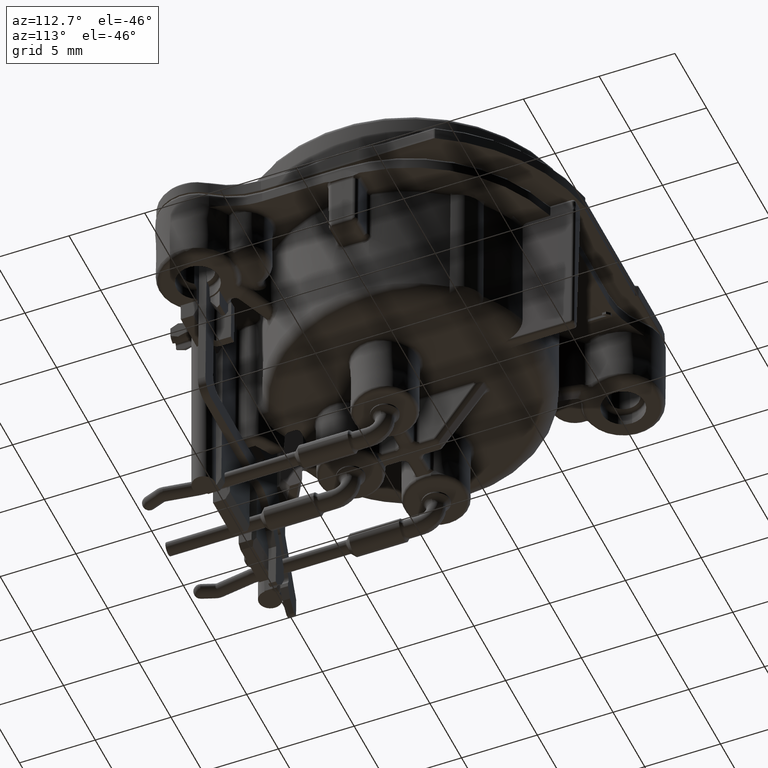
[diagram: clean part render]
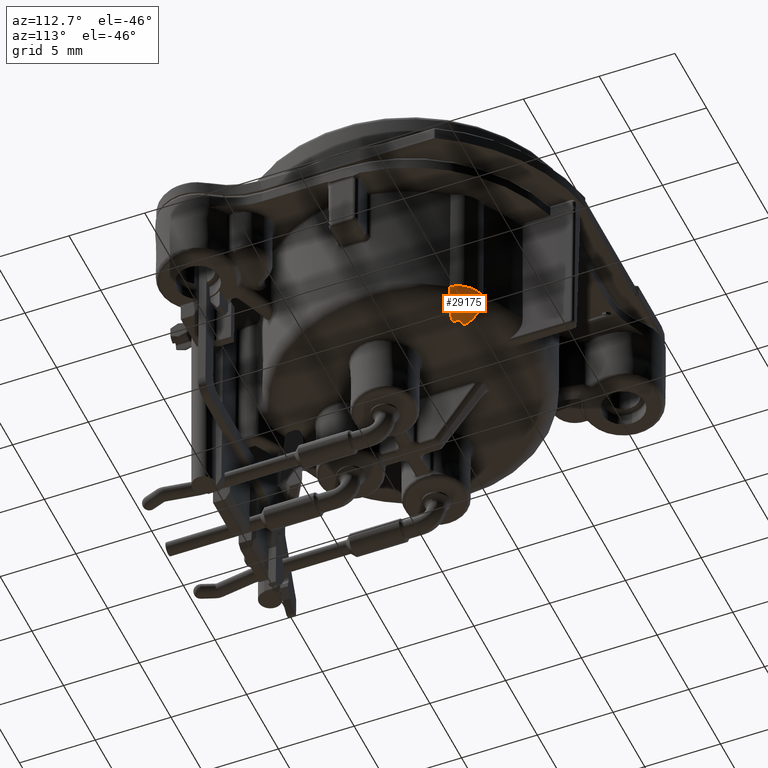
[diagram: same view with one face highlighted and labeled with its STEP entity id]
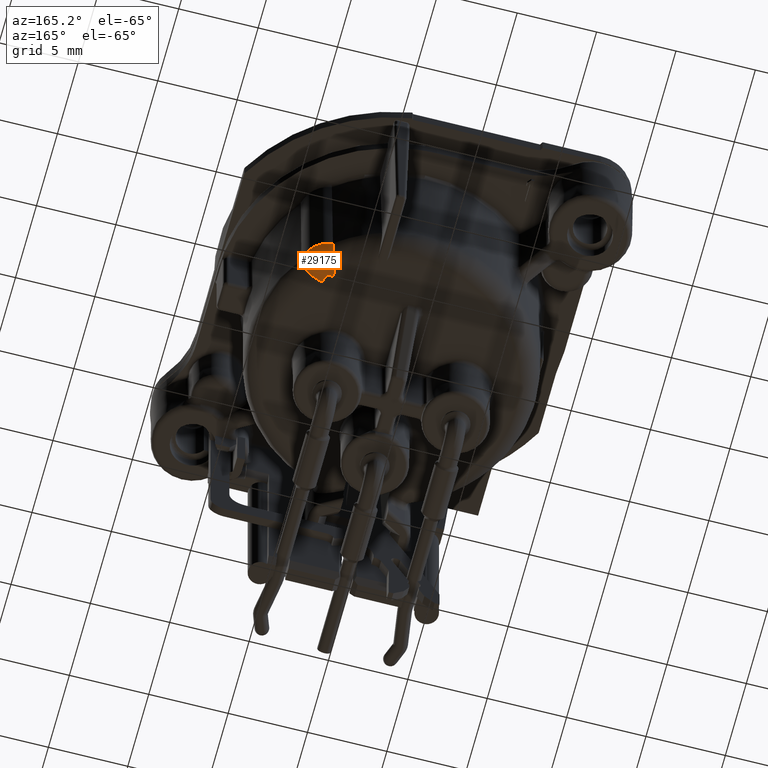
[diagram: same view with one face highlighted and labeled with its STEP entity id]
A machine part, auxiliary view. The second image highlights one B-rep face of the part: STEP entity #29175.
A second angle (auxiliary view) of the same face is appended — the face is thin or edge-on in the first view.
In plain terms, the highlighted face is a freeform B-spline surface patch.
Its self-contained STEP definition (entity closure, byte-faithful):
#3741=CARTESIAN_POINT('',(7.141560531053E0,5.568555176567E0,-9.212067490069E0));
#3742=CARTESIAN_POINT('',(7.141553096548E0,5.568544783689E0,-9.213080445044E0));
#3743=CARTESIAN_POINT('',(7.141535786267E0,5.568527132350E0,-9.215106174966E0));
#3744=CARTESIAN_POINT('',(7.141513598370E0,5.568515747312E0,-9.217131353627E0));
#3745=CARTESIAN_POINT('',(7.141501285638E0,5.56851162E0,-9.218143833828E0));
#3861=CARTESIAN_POINT('',(5.56851162E0,7.141501285638E0,-9.218143833828E0));
#3862=CARTESIAN_POINT('',(5.568515747312E0,7.141513598370E0,-9.217131353633E0));
#3863=CARTESIAN_POINT('',(5.568527132360E0,7.141535786274E0,-9.215106174019E0));
#3864=CARTESIAN_POINT('',(5.568544783670E0,7.141553096534E0,-9.213080446931E0));
#3865=CARTESIAN_POINT('',(5.568555176548E0,7.141560531040E0,-9.212067491938E0));
#3999=CARTESIAN_POINT('',(5.354409922025E0,5.354409922025E0,-9.196753750945E0));
#4000=DIRECTION('',(7.651482399815E-3,7.651482399815E-3,9.999414531032E-1));
#4001=DIRECTION('',(9.928614492877E-1,1.189695858067E-1,-8.507653693315E-3));
#4002=AXIS2_PLACEMENT_3D('',#3999,#4000,#4001);
#4024=CARTESIAN_POINT('',(7.141501285638E0,5.56851162E0,-9.218143833828E0));
#4025=CARTESIAN_POINT('',(7.140363829401E0,5.568130336944E0,-9.311677252098E0));
#4026=CARTESIAN_POINT('',(7.121437534759E0,5.560489438757E0,-9.492890903120E0));
#4027=CARTESIAN_POINT('',(7.051261413969E0,5.532073586292E0,-9.740982577055E0));
#4028=CARTESIAN_POINT('',(6.951075627711E0,5.492133194723E0,-9.954862100472E0));
#4029=CARTESIAN_POINT('',(6.829486726049E0,5.444902039040E0,-1.013596077637E1));
#4030=CARTESIAN_POINT('',(6.699753358048E0,5.396278685597E0,-1.027956180640E1));
#4031=CARTESIAN_POINT('',(6.571274377264E0,5.350216565990E0,-1.038995278199E1));
#4032=CARTESIAN_POINT('',(6.446710165318E0,5.307892040028E0,-1.047482997417E1));
#4033=CARTESIAN_POINT('',(6.326304100696E0,5.269577936695E0,-1.054036452966E1));
#4034=CARTESIAN_POINT('',(6.207104042662E0,5.234672033966E0,-1.059184473607E1));
#4035=CARTESIAN_POINT('',(6.087066482317E0,5.203354871644E0,-1.063185302861E1));
#4036=CARTESIAN_POINT('',(5.968928051255E0,5.177393684307E0,-1.066097071183E1));
#4037=CARTESIAN_POINT('',(5.854409164263E0,5.158735600602E0,-1.068052133470E1));
#4038=CARTESIAN_POINT('',(5.784289192648E0,5.153092281791E0,-1.068804264199E1));
#4039=CARTESIAN_POINT('',(5.750524781642E0,5.152944040210E0,-1.069084467006E1));
#4041=CARTESIAN_POINT('',(5.626298010358E0,5.227620195725E0,-9.197864033512E0));
#4042=DIRECTION('',(4.225793594926E-1,9.062688847885E-1,-1.016825427287E-2));
#4043=DIRECTION('',(8.281784752307E-2,-4.978410367612E-2,-9.953204243623E-1));
#4044=AXIS2_PLACEMENT_3D('',#4041,#4042,#4043);
#4166=CARTESIAN_POINT('',(5.227620195725E0,5.626298010358E0,-9.197864033512E0));
#4167=DIRECTION('',(9.062688847885E-1,4.225793594926E-1,-1.016825427287E-2));
#4168=DIRECTION('',(-1.221163584647E-2,2.128718644245E-3,-9.999231693020E-1));
#4169=AXIS2_PLACEMENT_3D('',#4166,#4167,#4168);
#4171=CARTESIAN_POINT('',(5.152944040210E0,5.750524781642E0,-1.069084467006E1));
#4172=CARTESIAN_POINT('',(5.153026603710E0,5.769329950256E0,-1.068928407389E1));
#4173=CARTESIAN_POINT('',(5.154944537595E0,5.808527346492E0,-1.068549103756E1));
#4174=CARTESIAN_POINT('',(5.161959030777E0,5.871805801874E0,-1.067727175806E1));
#4175=CARTESIAN_POINT('',(5.172756793044E0,5.940273306183E0,-1.066575483529E1));
#4176=CARTESIAN_POINT('',(5.187199819141E0,6.014011607479E0,-1.065006989303E1));
#4177=CARTESIAN_POINT('',(5.205238502033E0,6.093069674331E0,-1.062918676062E1));
#4178=CARTESIAN_POINT('',(5.226781082627E0,6.177135621977E0,-1.060196659187E1));
#4179=CARTESIAN_POINT('',(5.251526766158E0,6.265266510119E0,-1.056738502241E1));
#4180=CARTESIAN_POINT('',(5.279530961624E0,6.357885176064E0,-1.052371042722E1));
#4181=CARTESIAN_POINT('',(5.311029772350E0,6.455781931379E0,-1.046834756707E1));
#4182=CARTESIAN_POINT('',(5.346025053386E0,6.558903869110E0,-1.039817214998E1));
#4183=CARTESIAN_POINT('',(5.384031076242E0,6.665887263221E0,-1.030984229905E1));
#4184=CARTESIAN_POINT('',(5.424244550536E0,6.774764313906E0,-1.019941517132E1));
#4185=CARTESIAN_POINT('',(5.465782841020E0,6.883554517902E0,-1.006026012425E1));
#4186=CARTESIAN_POINT('',(5.505370169123E0,6.984433299522E0,-9.890017212215E0));
#4187=CARTESIAN_POINT('',(5.538900066078E0,7.068155509057E0,-9.689719048644E0));
#4188=CARTESIAN_POINT('',(5.562107981650E0,7.125422644058E0,-9.462713033108E0));
#4189=CARTESIAN_POINT('',(5.568173859603E0,7.140493667638E0,-9.301000609149E0));
#4190=CARTESIAN_POINT('',(5.56851162E0,7.141501285638E0,-9.218143833828E0));
#19843=CARTESIAN_POINT('',(5.342933370381E0,5.342933370381E0,
-1.069657811540E1));
#19844=DIRECTION('',(7.651482399815E-3,7.651482399815E-3,9.999414531032E-1));
#19845=DIRECTION('',(9.062898641540E-1,-4.226404924179E-1,-3.700851328881E-3));
#19846=AXIS2_PLACEMENT_3D('',#19843,#19844,#19845);
#20780=VERTEX_POINT('',#3741);
#20781=VERTEX_POINT('',#3745);
#20782=VERTEX_POINT('',#3861);
#20783=VERTEX_POINT('',#3865);
#20784=CARTESIAN_POINT('',(5.750524781642E0,5.152944040210E0,
-1.069084467006E1));
#20785=CARTESIAN_POINT('',(5.629491074218E0,5.209302748531E0,
-1.069774878758E1));
#20786=VERTEX_POINT('',#20784);
#20787=VERTEX_POINT('',#20785);
#20788=CARTESIAN_POINT('',(5.209302741955E0,5.629491088324E0,
-1.069774878747E1));
#20789=CARTESIAN_POINT('',(5.152944040210E0,5.750524781642E0,
-1.069084467006E1));
#20790=VERTEX_POINT('',#20788);
#20791=VERTEX_POINT('',#20789);
#29143=CARTESIAN_POINT('',(5.629531732876E0,5.209283793595E0,
-1.069774846886E1));
#29144=CARTESIAN_POINT('',(6.419083601944E0,4.841197386519E0,
-1.069154627633E1));
#29145=CARTESIAN_POINT('',(6.979072793296E0,4.587005905497E0,
-1.007452356949E1));
#29146=CARTESIAN_POINT('',(6.985738452022E0,4.593671564223E0,
-9.203415446347E0));
#29147=CARTESIAN_POINT('',(5.778665639357E0,5.529118201204E0,
-1.070133698176E1));
#29148=CARTESIAN_POINT('',(6.979030036642E0,6.042065388034E0,
-1.070501990584E1));
#29149=CARTESIAN_POINT('',(7.827948531159E0,6.407515239414E0,
-1.009494951826E1));
#29150=CARTESIAN_POINT('',(7.834614189885E0,6.414180898140E0,
-9.223841395118E0));
#29151=CARTESIAN_POINT('',(5.529118201204E0,5.778665639357E0,
-1.070133698176E1));
#29152=CARTESIAN_POINT('',(6.042065388034E0,6.979030036642E0,
-1.070501990584E1));
#29153=CARTESIAN_POINT('',(6.407515239414E0,7.827948531159E0,
-1.009494951826E1));
#29154=CARTESIAN_POINT('',(6.414180898140E0,7.834614189885E0,
-9.223841395118E0));
#29155=CARTESIAN_POINT('',(5.209283793595E0,5.629531732876E0,
-1.069774846886E1));
#29156=CARTESIAN_POINT('',(4.841197386519E0,6.419083601944E0,
-1.069154627633E1));
#29157=CARTESIAN_POINT('',(4.587005905497E0,6.979072793296E0,
-1.007452356949E1));
#29158=CARTESIAN_POINT('',(4.593671564223E0,6.985738452022E0,
-9.203415446347E0));
#29159=(BOUNDED_SURFACE()B_SPLINE_SURFACE(3,3,((#29143,#29144,#29145,#29146),(
#29147,#29148,#29149,#29150),(#29151,#29152,#29153,#29154),(#29155,#29156,
#29157,#29158)),.UNSPECIFIED.,.F.,.F.,.F.)B_SPLINE_SURFACE_WITH_KNOTS((4,4),(4,
4),(0.E0,1.E0),(0.E0,1.E0),.UNSPECIFIED.)GEOMETRIC_REPRESENTATION_ITEM()RATIONAL_B_SPLINE_SURFACE(((1.742090402089E0,1.406357328058E0,1.406357328058E0,
1.742090402089E0),(9.779168067019E-1,7.894541326257E-1,7.894541326257E-1,
9.779168067019E-1),(9.779168067019E-1,7.894541326257E-1,7.894541326257E-1,
9.779168067019E-1),(1.742090402089E0,1.406357328058E0,1.406357328058E0,
1.742090402089E0)))REPRESENTATION_ITEM('')SURFACE());
#29160=ORIENTED_EDGE('',*,*,#29042,.F.);
#29161=ORIENTED_EDGE('',*,*,#29137,.T.);
#29162=ORIENTED_EDGE('',*,*,#29083,.F.);
#29164=ORIENTED_EDGE('',*,*,#29163,.F.);
#29166=ORIENTED_EDGE('',*,*,#29165,.F.);
#29168=ORIENTED_EDGE('',*,*,#29167,.F.);
#29170=ORIENTED_EDGE('',*,*,#29169,.F.);
#29172=ORIENTED_EDGE('',*,*,#29171,.F.);
#29173=EDGE_LOOP('',(#29160,#29161,#29162,#29164,#29166,#29168,#29170,#29172));
#29174=FACE_OUTER_BOUND('',#29173,.F.);
#29175=ADVANCED_FACE('',(#29174),#29159,.T.);
#3746=B_SPLINE_CURVE_WITH_KNOTS('',3,(#3741,#3742,#3743,#3744,#3745),
.UNSPECIFIED.,.F.,.F.,(4,1,4),(0.E0,5.E-1,1.E0),.UNSPECIFIED.);
#3866=B_SPLINE_CURVE_WITH_KNOTS('',3,(#3861,#3862,#3863,#3864,#3865),
.UNSPECIFIED.,.F.,.F.,(4,1,4),(0.E0,5.E-1,1.E0),.UNSPECIFIED.);
#4003=CIRCLE('',#4002,1.8E0);
#4040=B_SPLINE_CURVE_WITH_KNOTS('',3,(#4024,#4025,#4026,#4027,#4028,#4029,#4030,
#4031,#4032,#4033,#4034,#4035,#4036,#4037,#4038,#4039),.UNSPECIFIED.,.F.,.F.,(4,
1,1,1,1,1,1,1,1,1,1,1,1,4),(0.E0,7.692307692308E-2,1.538461538462E-1,
2.307692307692E-1,3.076923076923E-1,3.846153846154E-1,4.615384615385E-1,
5.384615384615E-1,6.153846153846E-1,6.923076923077E-1,7.692307692308E-1,
8.461538461538E-1,9.230769230769E-1,1.E0),.UNSPECIFIED.);
#4045=CIRCLE('',#4044,1.5E0);
#4170=CIRCLE('',#4169,1.5E0);
#4191=B_SPLINE_CURVE_WITH_KNOTS('',3,(#4171,#4172,#4173,#4174,#4175,#4176,#4177,
#4178,#4179,#4180,#4181,#4182,#4183,#4184,#4185,#4186,#4187,#4188,#4189,#4190),
.UNSPECIFIED.,.F.,.F.,(4,1,1,1,1,1,1,1,1,1,1,1,1,1,1,1,1,4),(0.E0,
5.882352941176E-2,1.176470588235E-1,1.764705882353E-1,2.352941176471E-1,
2.941176470588E-1,3.529411764706E-1,4.117647058824E-1,4.705882352941E-1,
5.294117647059E-1,5.882352941176E-1,6.470588235294E-1,7.058823529412E-1,
7.647058823529E-1,8.235294117647E-1,8.823529411765E-1,9.411764705882E-1,1.E0),
.UNSPECIFIED.);
#19847=CIRCLE('',#19846,3.162312452731E-1);
#29042=EDGE_CURVE('',#20780,#20781,#3746,.T.);
#29083=EDGE_CURVE('',#20782,#20783,#3866,.T.);
#29137=EDGE_CURVE('',#20780,#20783,#4003,.T.);
#29163=EDGE_CURVE('',#20791,#20782,#4191,.T.);
#29165=EDGE_CURVE('',#20790,#20791,#4170,.T.);
#29167=EDGE_CURVE('',#20787,#20790,#19847,.T.);
#29169=EDGE_CURVE('',#20786,#20787,#4045,.T.);
#29171=EDGE_CURVE('',#20781,#20786,#4040,.T.);